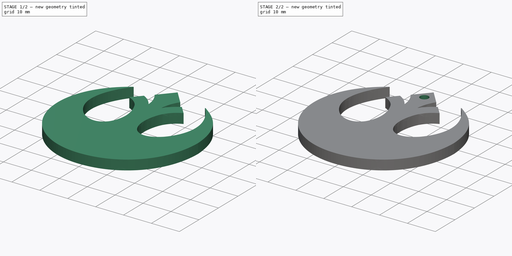
[diagram: build sequence overview — one tinted view per stage of 2, left to right]
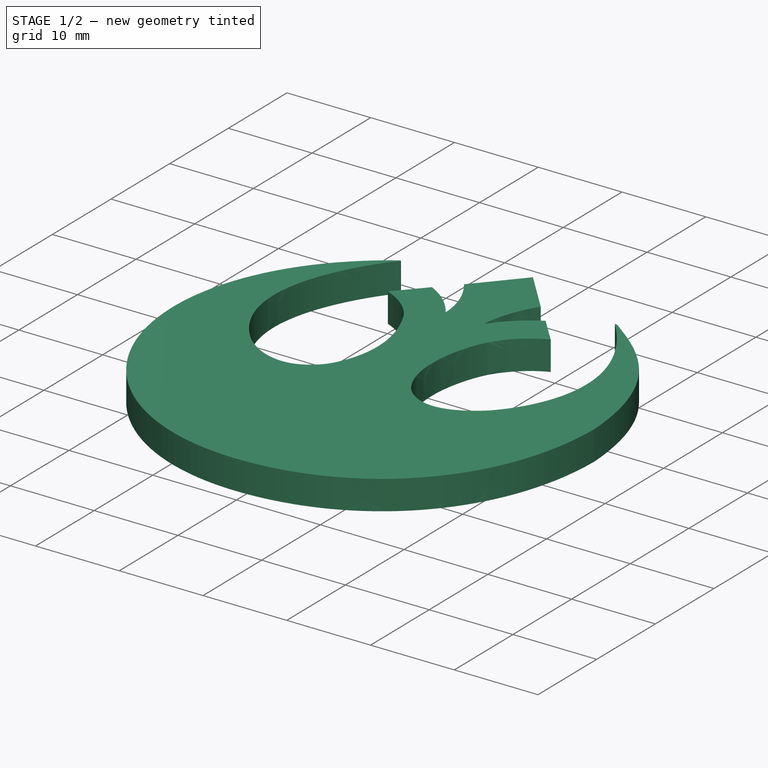
[diagram: stage 1 of 2 — iso view after this stage's code; geometry added in this stage tinted green]
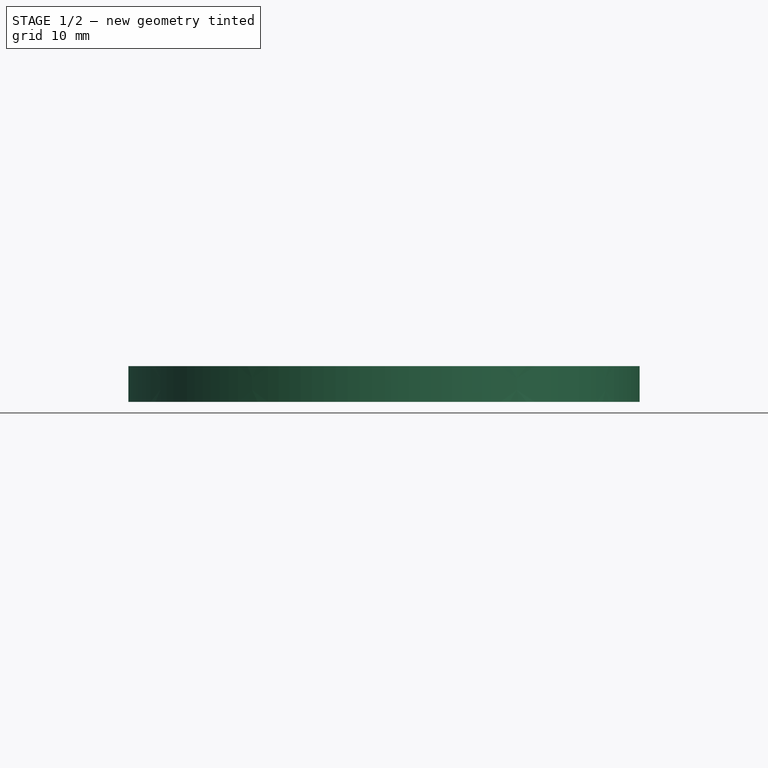
[diagram: stage 1 of 2 — front view after this stage's code; geometry added in this stage tinted green]
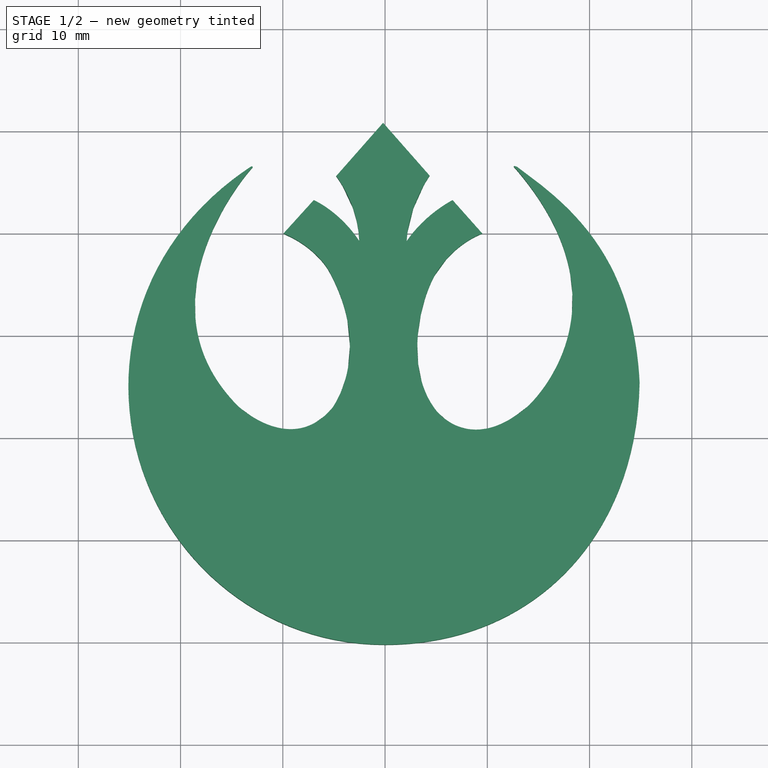
[diagram: stage 1 of 2 — top view after this stage's code; geometry added in this stage tinted green]
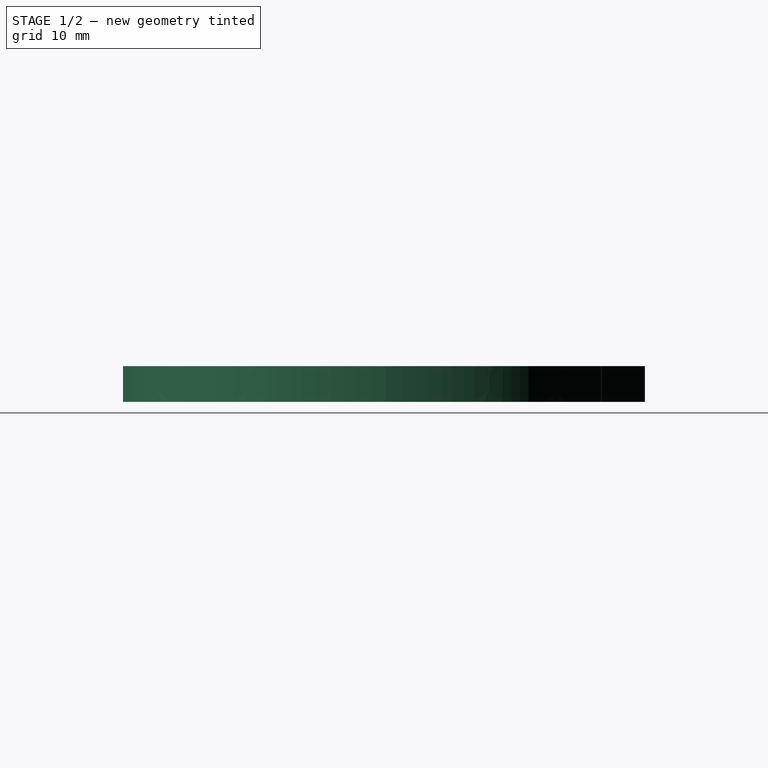
[diagram: stage 1 of 2 — right view after this stage's code; geometry added in this stage tinted green]
FCSTD DOCUMENT
Label: rebel-alliance-v1
objects: Part::Feature×3, App::DocumentObjectGroup×2, Part::Extrusion×1, Sketcher::SketchObject×1, PartDesign::Pocket×1
note: 7 computed .brp shape members not serialized (recipe doc carries the construction recipe); baked Part::Feature solids carry a one-line shape summary decoded from their .brp

FEATURE [Part::Feature] path5
  shape: bbox 50.42 x 51.04 x 2e-07 mm, 0 faces, 0 solids (baked)
FEATURE [Part::Extrusion] Extrude  label="rebel-alliance-logo"
  Base = -> path5
  Dir = (0,0,3.5)
  Placement = pos=(-0.5,-15.5,0) rot=(0,0,1;0rad)
  Solid = true
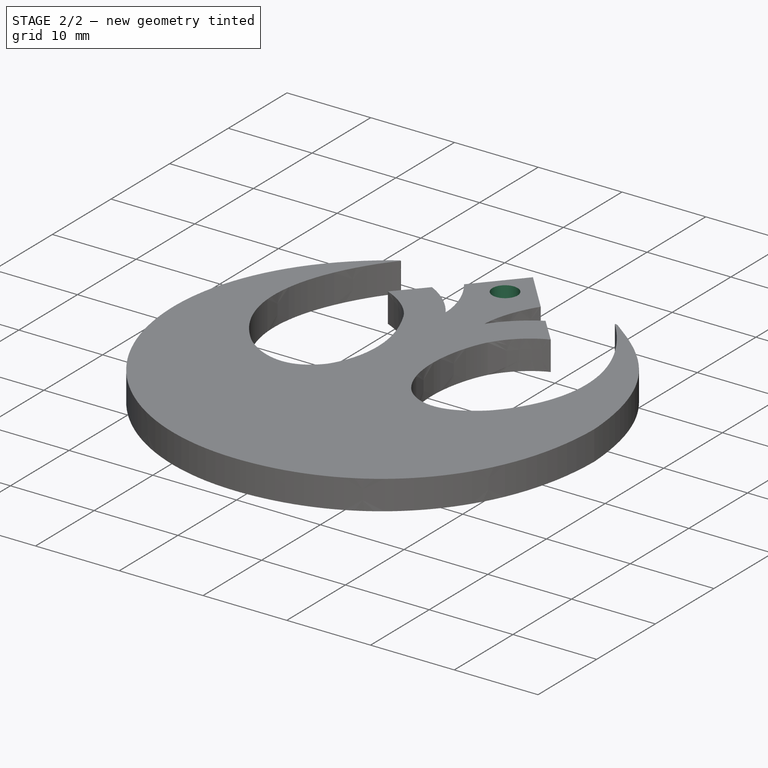
[diagram: stage 2 of 2 — iso view after this stage's code; geometry added in this stage tinted green]
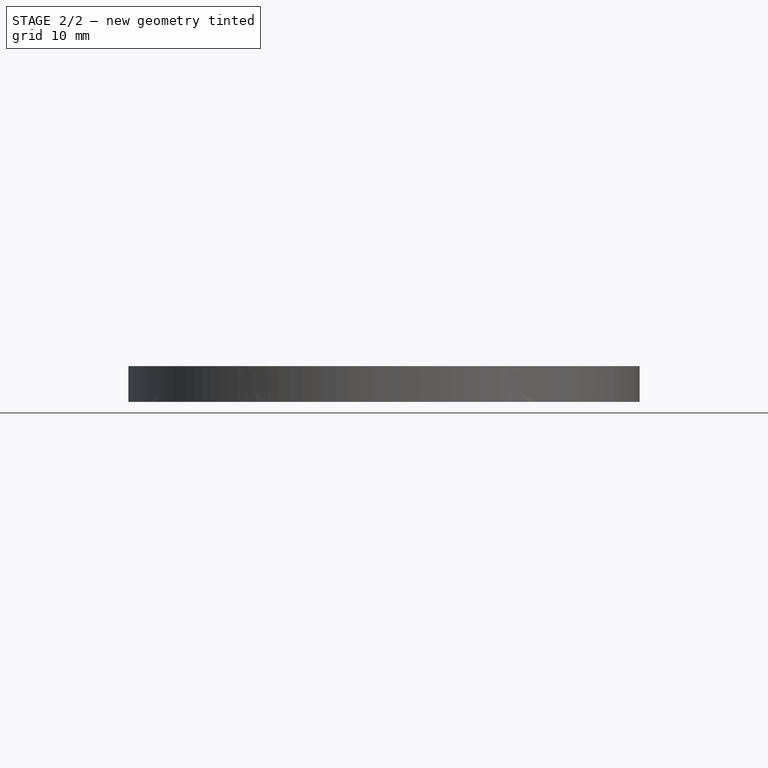
[diagram: stage 2 of 2 — front view after this stage's code; geometry added in this stage tinted green]
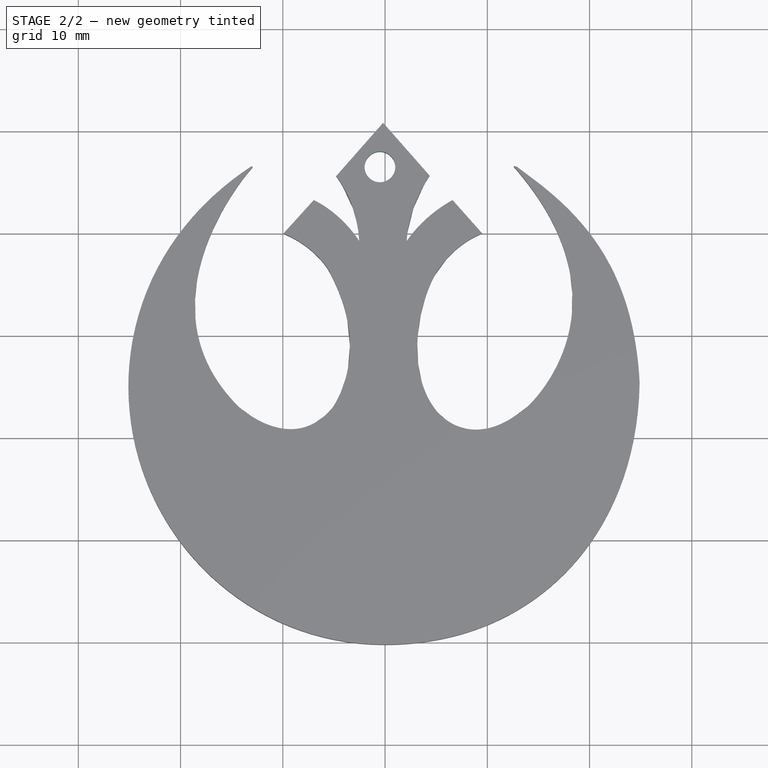
[diagram: stage 2 of 2 — top view after this stage's code; geometry added in this stage tinted green]
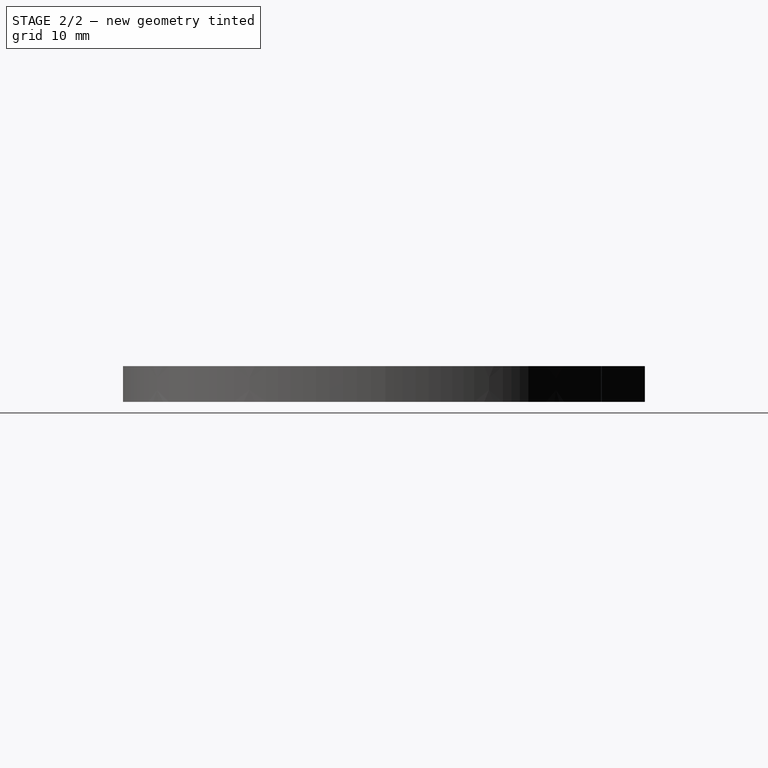
[diagram: stage 2 of 2 — right view after this stage's code; geometry added in this stage tinted green]
FEATURE [Part::Feature] Sweep  label="key-ring-model-1"
  Placement = pos=(-1.2,24.7546,1.6391) rot=(0.333333,0.881918,0.333333;1.69612rad)
  shape: bbox 3.31 x 27.02 x 26.33 mm, 4 faces (baked)
FEATURE [Part::Feature] Cut  label="key-model-1"
  Placement = pos=(-5.46976,31.0266,0) rot=(0,0,1;0.517888rad)
  shape: bbox 49.82 x 36.6 x 2.3 mm, 44 faces (baked)
FEATURE [App::DocumentObjectGroup] Grupo  label="Key"
  Group = -> [Cut,Sweep]
FEATURE [Sketcher::SketchObject] Sketch001  label="keychain-hole-sketch"
  Placement = pos=(-0.5,-15.5,3.5) rot=(0,0,1;0rad)
  Support = -> Extrude [Face24]
  sketch-geometry (1):
    g0: Circle CenterX=0 CenterY=32 CenterZ=0 NormalX=0 NormalY=0 NormalZ=1 Radius=1.5
  constraints (3):
    c: PointOnObject(g0,g-2)
    c: Radius(g0) = 1.5
    c: DistanceY(g-1,g0) = 32
FEATURE [PartDesign::Pocket] Pocket  label="keychain-hole"
  Length = 5
  Placement = pos=(-0.5,-15.5,0) rot=(0,0,1;0rad)
  Sketch = -> Sketch001
  Type = 1
FEATURE [App::DocumentObjectGroup] Grupo001  label="keychain"
  Group = -> [Extrude,Pocket]
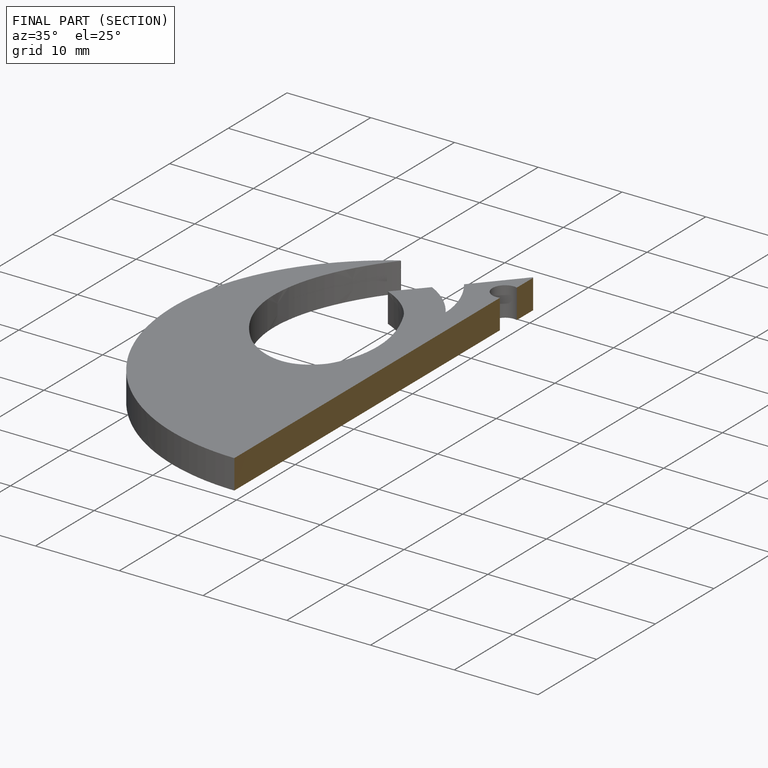
[diagram: finished part — half-section view (interior)]
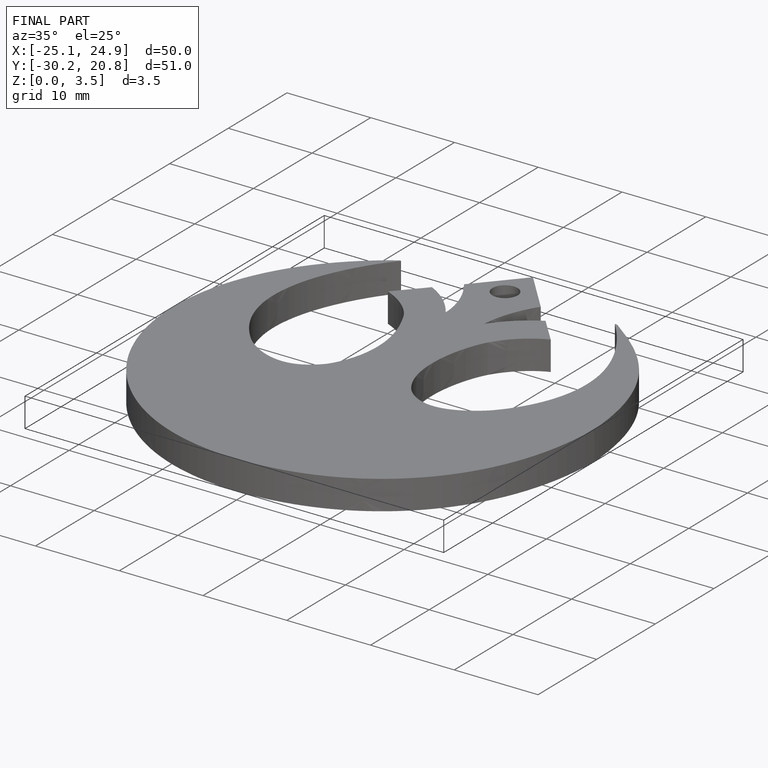
[diagram: finished part — iso view with bounding-box wireframe]
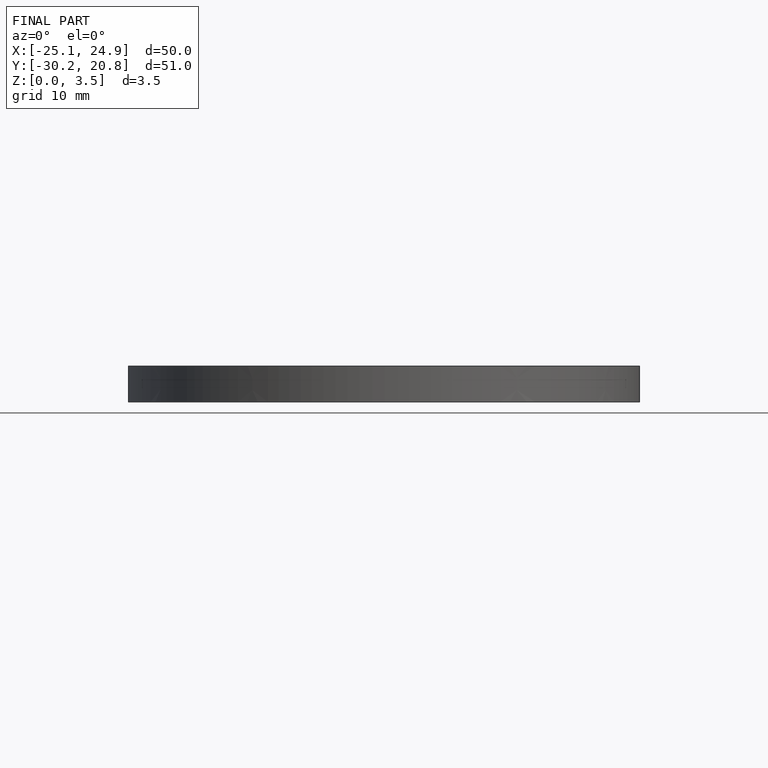
[diagram: finished part — front view with bounding-box wireframe]
